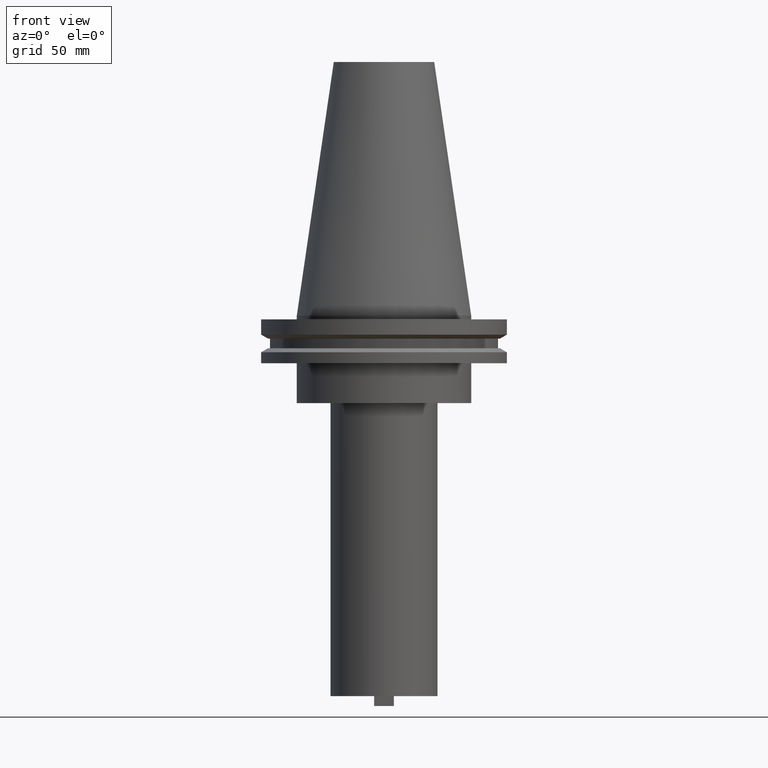
[diagram: clean part render]
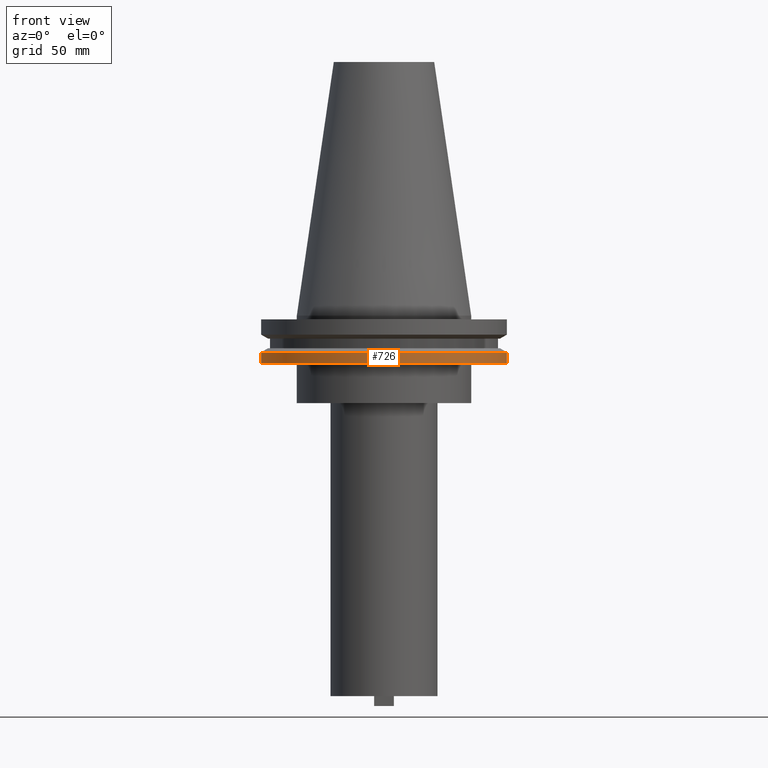
[diagram: same view with one face highlighted and labeled with its STEP entity id]
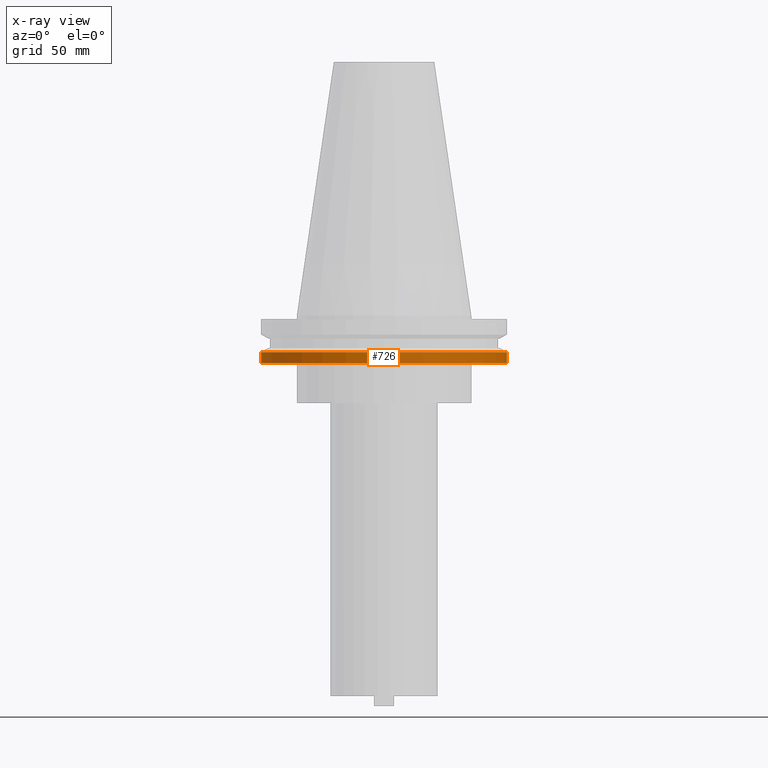
[diagram: x-ray of the same camera — body ghosted, the highlighted face saturated]
A machine part, front view. The second image highlights one B-rep face of the part: STEP entity #726.
The next image is the same camera in x-ray: the body ghosted, the highlighted face saturated — about 0% of this face is hidden behind the body in this view.
In plain terms, the highlighted cylindrical surface (partial cylindrical patch) has radius 49.215 mm, axis along (-0, -0, 1).
Its self-contained STEP definition (entity closure, byte-faithful):
#14 = DIRECTION ( 'NONE',  ( -0.000000000000000000, -0.000000000000000000, 1.000000000000000000 ) ) ;
#26 = LINE ( 'NONE', #616, #473 ) ;
#42 = DIRECTION ( 'NONE',  ( -0.000000000000000000, -0.000000000000000000, 1.000000000000000000 ) ) ;
#48 = VERTEX_POINT ( 'NONE', #776 ) ;
#55 = VERTEX_POINT ( 'NONE', #667 ) ;
#82 = ORIENTED_EDGE ( 'NONE', *, *, #707, .F. ) ;
#88 = VERTEX_POINT ( 'NONE', #627 ) ;
#125 = FACE_OUTER_BOUND ( 'NONE', #746, .T. ) ;
#143 = DIRECTION ( 'NONE',  ( -0.000000000000000000, -0.000000000000000000, 1.000000000000000000 ) ) ;
#306 = CARTESIAN_POINT ( 'NONE',  ( 0.000000000000000000, 0.000000000000000000, -19.04999999999999716 ) ) ;
#325 = CARTESIAN_POINT ( 'NONE',  ( 0.000000000000000000, 0.000000000000000000, -14.65761014474876944 ) ) ;
#349 = CYLINDRICAL_SURFACE ( 'NONE', #856, 49.21499999999998920 ) ;
#352 = DIRECTION ( 'NONE',  ( -0.000000000000000000, -0.000000000000000000, 1.000000000000000000 ) ) ;
#357 = LINE ( 'NONE', #683, #562 ) ;
#422 = DIRECTION ( 'NONE',  ( 1.000000000000000000, 0.000000000000000000, 0.000000000000000000 ) ) ;
#473 = VECTOR ( 'NONE', #42, 1000.000000000000000 ) ;
#474 = CIRCLE ( 'NONE', #908, 49.21499999999998920 ) ;
#537 = ORIENTED_EDGE ( 'NONE', *, *, #801, .T. ) ;
#562 = VECTOR ( 'NONE', #1046, 1000.000000000000000 ) ;
#593 = EDGE_CURVE ( 'NONE', #88, #805, #947, .T. ) ;
#610 = CARTESIAN_POINT ( 'NONE',  ( 0.000000000000000000, 0.000000000000000000, 101.5999999999999943 ) ) ;
#616 = CARTESIAN_POINT ( 'NONE',  ( -49.21499999999998920, 6.027099222003697037E-15, 101.5999999999999943 ) ) ;
#627 = CARTESIAN_POINT ( 'NONE',  ( -49.21499999999998920, 6.027099222003697037E-15, -14.65761014474876944 ) ) ;
#667 = CARTESIAN_POINT ( 'NONE',  ( -49.21499999999998920, 6.027099222003697037E-15, -19.04999999999999716 ) ) ;
#677 = EDGE_CURVE ( 'NONE', #48, #805, #357, .T. ) ;
#683 = CARTESIAN_POINT ( 'NONE',  ( 49.21499999999998920, 0.000000000000000000, 101.5999999999999943 ) ) ;
#707 = EDGE_CURVE ( 'NONE', #55, #88, #26, .T. ) ;
#726 = ADVANCED_FACE ( 'NONE', ( #125 ), #349, .T. ) ;
#729 = CARTESIAN_POINT ( 'NONE',  ( 49.21499999999998920, 0.000000000000000000, -14.65761014474876944 ) ) ;
#746 = EDGE_LOOP ( 'NONE', ( #82, #537, #902, #852 ) ) ;
#776 = CARTESIAN_POINT ( 'NONE',  ( 49.21499999999998920, 0.000000000000000000, -19.04999999999999716 ) ) ;
#796 = AXIS2_PLACEMENT_3D ( 'NONE', #325, #14, #422 ) ;
#801 = EDGE_CURVE ( 'NONE', #55, #48, #474, .T. ) ;
#805 = VERTEX_POINT ( 'NONE', #729 ) ;
#852 = ORIENTED_EDGE ( 'NONE', *, *, #593, .F. ) ;
#856 = AXIS2_PLACEMENT_3D ( 'NONE', #610, #352, #1034 ) ;
#902 = ORIENTED_EDGE ( 'NONE', *, *, #677, .T. ) ;
#908 = AXIS2_PLACEMENT_3D ( 'NONE', #306, #143, #1071 ) ;
#947 = CIRCLE ( 'NONE', #796, 49.21499999999998920 ) ;
#1034 = DIRECTION ( 'NONE',  ( 1.000000000000000000, 0.000000000000000000, 0.000000000000000000 ) ) ;
#1046 = DIRECTION ( 'NONE',  ( -0.000000000000000000, -0.000000000000000000, 1.000000000000000000 ) ) ;
#1071 = DIRECTION ( 'NONE',  ( 1.000000000000000000, 0.000000000000000000, 0.000000000000000000 ) ) ;